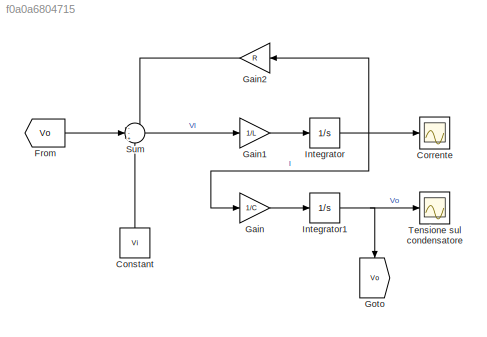
MODEL slx_f0a0a6804715
KIND model
CONFIG AbsTol = auto
CONFIG EnableMultiTasking = off
CONFIG FixedStep = auto
CONFIG MaxStep = auto
CONFIG MinStep = auto
CONFIG RelTol = 1e-3
CONFIG SampleTimeConstraint = Unconstrained
CONFIG SolverName = VariableStepAuto
CONFIG StartTime = 0.0
CONFIG StopTime = 15
BLOCK [Constant] Constant
  NameLocation = right
  Value = Vi
BLOCK [Scope] Corrente
  Floating = off
  NumInputPorts = 1
  ScopeSpecificationString = Simulink.scopes.TimeScopeBlockCfg('CurrentConfiguration', extmgr.ConfigurationSet(extmgr.Configuration('Core','General UI',true),extmgr.Configuration('Core','Source UI',true),extmgr.Configuration('Sources','WiredSimulink',true),extmgr.Configuration('Visuals','Time Domain',true,'SerializedDisplays',{struct('MinYLimReal','-0.19382','MaxYLimReal','0.22577','YLabelReal','','MinYLimMag','0.00000','MaxY...<+1344ch>
BLOCK [From] From
  GotoTag = Vo
BLOCK [Gain] Gain
  Gain = 1/C
BLOCK [Gain] Gain1
  Gain = 1/L
BLOCK [Gain] Gain2
  Gain = R
  NameLocation = top
BLOCK [Goto] Goto
  GotoTag = Vo
  NameLocation = left
BLOCK [Integrator] Integrator
BLOCK [Integrator] Integrator1
BLOCK [Sum] Sum
  Inputs = --+
BLOCK [Scope] Tensione sul condensatore
  Floating = off
  NumInputPorts = 1
  ScopeSpecificationString = Simulink.scopes.TimeScopeBlockCfg('CurrentConfiguration', extmgr.ConfigurationSet(extmgr.Configuration('Core','General UI',true),extmgr.Configuration('Core','Source UI',true),extmgr.Configuration('Sources','WiredSimulink',true,'DataLoggingVariableName','ScopeData1'),extmgr.Configuration('Visuals','Time Domain',true,'SerializedDisplays',{struct('MinYLimReal','-0.29071','MaxYLimReal','3.70811','YLab...<+1404ch>
LINE Constant:1 -> Sum:3
LINE From:1 -> Sum:2
LINE Gain1:1 -> Integrator:1
LINE Gain2:1 -> Sum:1
LINE Gain:1 -> Integrator1:1
NET Integrator1:1 -> Goto:1, Tensione sul condensatore:1
NET Integrator:1 -> Corrente:1, Gain2:1, Gain:1
LINE Sum:1 -> Gain1:1
note: NET lines group one-source signal fan-out (src -> all destinations, sorted); 1:1 wires keep LINE
